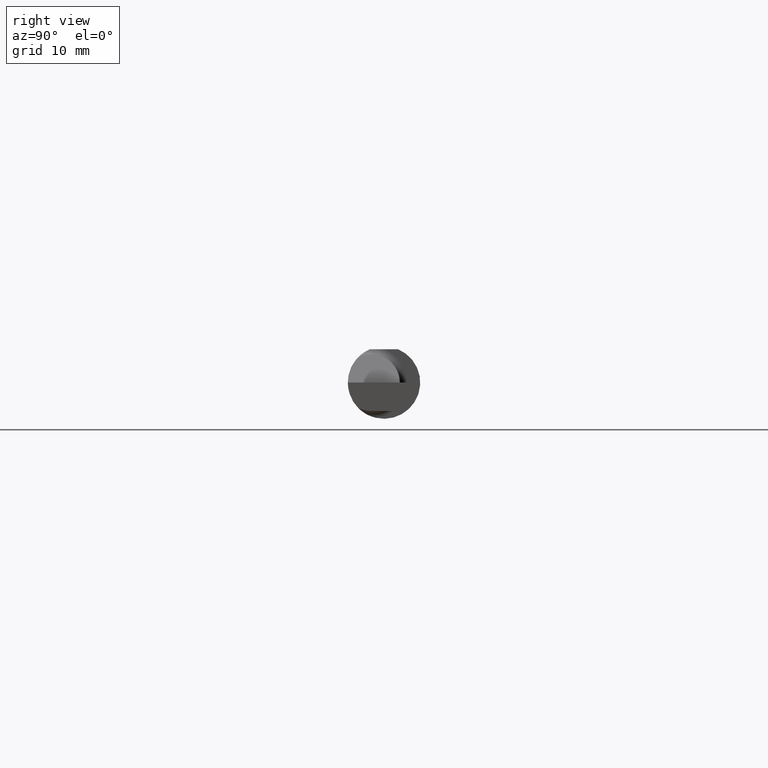
[diagram: clean part render]
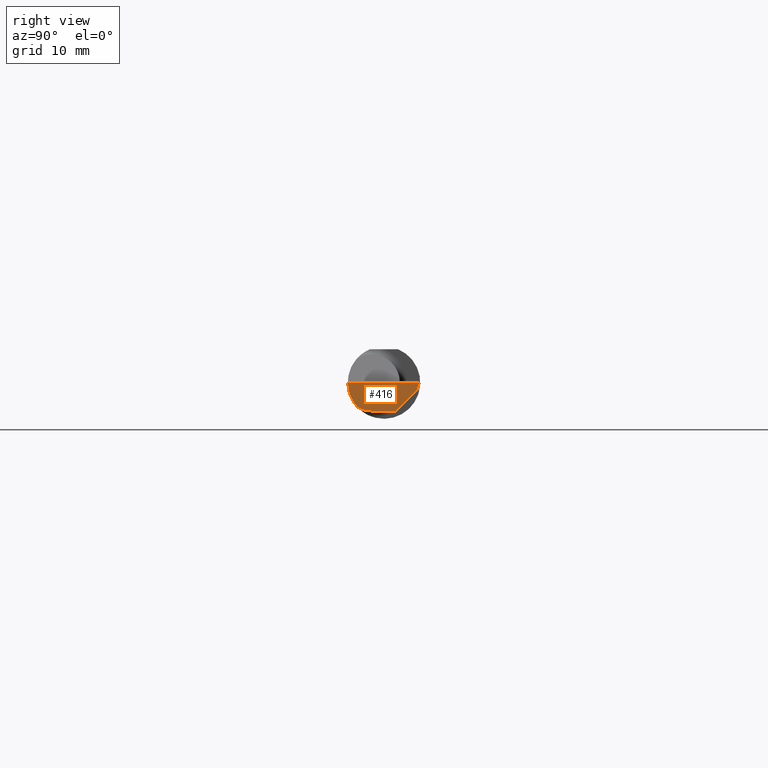
[diagram: same view with one face highlighted and labeled with its STEP entity id]
A machine part, right view. The second image highlights one B-rep face of the part: STEP entity #416.
In plain terms, the highlighted planar face has unit normal (-0.9995, 0.0174, 0.0262).
Its self-contained STEP definition (entity closure, byte-faithful):
#9 = EDGE_CURVE ( 'NONE', #394, #778, #321, .T. ) ;
#14 = VERTEX_POINT ( 'NONE', #137 ) ;
#23 = FACE_OUTER_BOUND ( 'NONE', #359, .T. ) ;
#56 = VERTEX_POINT ( 'NONE', #524 ) ;
#70 = EDGE_CURVE ( 'NONE', #778, #462, #717, .T. ) ;
#75 = PLANE ( 'NONE',  #561 ) ;
#78 = CARTESIAN_POINT ( 'NONE',  ( 2.499907402661638134, 0.1211597610527450908, -0.002875862722115925512 ) ) ;
#93 = EDGE_CURVE ( 'NONE', #430, #394, #112, .T. ) ;
#97 = CARTESIAN_POINT ( 'NONE',  ( 2.493072779947982820, -0.1248043149033065263, -0.09996577117162364079 ) ) ;
#112 = LINE ( 'NONE', #358, #388 ) ;
#117 = ORIENTED_EDGE ( 'NONE', *, *, #70, .F. ) ;
#126 = CARTESIAN_POINT ( 'NONE',  ( 2.494253479596433731, -0.06008937020638527304, -0.09800000000000000377 ) ) ;
#137 = CARTESIAN_POINT ( 'NONE',  ( 2.494033449660866708, -0.09015216647662482874, -0.08637192471845768493 ) ) ;
#140 =( BOUNDED_CURVE ( )  B_SPLINE_CURVE ( 3, ( #159, #155, #295, #348 ),
 .UNSPECIFIED., .F., .T. ) 
 B_SPLINE_CURVE_WITH_KNOTS ( ( 4, 4 ),
 ( 0.2190942387645742062, 0.9826237902197102470 ),
 .UNSPECIFIED. ) 
 CURVE ( )  GEOMETRIC_REPRESENTATION_ITEM ( )  RATIONAL_B_SPLINE_CURVE ( ( 1.000000000000000000, 0.9520057322288819623, 0.9520057322288819623, 1.000000000000000000 ) ) 
 REPRESENTATION_ITEM ( '' )  );
#149 = CARTESIAN_POINT ( 'NONE',  ( 2.494536841675280225, -0.04385000000000003478, -0.09799999999999998990 ) ) ;
#155 = CARTESIAN_POINT ( 'NONE',  ( 2.494256244271086054, -0.1126860773865890342, -0.06285177167860771241 ) ) ;
#159 = CARTESIAN_POINT ( 'NONE',  ( 2.494033449660866708, -0.09015216647662482874, -0.08637192471845768493 ) ) ;
#164 = EDGE_CURVE ( 'NONE', #14, #56, #140, .T. ) ;
#210 = CARTESIAN_POINT ( 'NONE',  ( 2.500000000000000000, 0.1221500000000000224, 1.614031285319217924E-16 ) ) ;
#215 = DIRECTION ( 'NONE',  ( -0.03042981077198511977, -0.3254173858243485373, -0.9450807116958996890 ) ) ;
#244 = CARTESIAN_POINT ( 'NONE',  ( 2.496652745773395576, 0.07741163850316090667, -0.09800000000000001765 ) ) ;
#250 = CARTESIAN_POINT ( 'NONE',  ( 2.494033449660866708, -0.09015216647662482874, -0.08637192471845768493 ) ) ;
#272 = DIRECTION ( 'NONE',  ( -0.9995051766793263681, 0.01744044634006990460, 0.02617694830739123249 ) ) ;
#277 = EDGE_CURVE ( 'NONE', #14, #353, #789, .T. ) ;
#279 = DIRECTION ( 'NONE',  ( 0.01744642479411244104, 0.9998477995484630343, -2.135106780035405654E-18 ) ) ;
#295 = CARTESIAN_POINT ( 'NONE',  ( 2.494835769263151537, -0.1248351010429638169, -0.03262966116142150541 ) ) ;
#321 = LINE ( 'NONE', #78, #423 ) ;
#328 = EDGE_CURVE ( 'NONE', #462, #353, #541, .T. ) ;
#348 = CARTESIAN_POINT ( 'NONE',  ( 2.495688583004118666, -0.1248499869621840785, -5.705736120965713455E-05 ) ) ;
#353 = VERTEX_POINT ( 'NONE', #149 ) ;
#358 = CARTESIAN_POINT ( 'NONE',  ( 2.494380489674781209, -0.1999019447116721915, 6.881915332554697616E-19 ) ) ;
#359 = EDGE_LOOP ( 'NONE', ( #490, #747, #117, #703, #787, #534, #379 ) ) ;
#364 = VECTOR ( 'NONE', #422, 39.37007874015747433 ) ;
#379 = ORIENTED_EDGE ( 'NONE', *, *, #164, .F. ) ;
#381 = CARTESIAN_POINT ( 'NONE',  ( 2.497382703856815933, 0.1221956850741156148, -0.09996573249755576207 ) ) ;
#388 = VECTOR ( 'NONE', #279, 39.37007874015747433 ) ;
#394 = VERTEX_POINT ( 'NONE', #210 ) ;
#402 = DIRECTION ( 'NONE',  ( 0.02617296143184117893, -0.0004568507411563389568, 0.9996573249755575929 ) ) ;
#409 = CARTESIAN_POINT ( 'NONE',  ( 2.495997960279815242, 0.03988613728104774270, -0.09799999999999996214 ) ) ;
#416 = ADVANCED_FACE ( 'NONE', ( #23 ), #75, .F. ) ;
#422 = DIRECTION ( 'NONE',  ( -0.01744642479411243410, -0.9998477995484630343, 2.816882764651548725E-16 ) ) ;
#423 = VECTOR ( 'NONE', #215, 39.37007874015748143 ) ;
#430 = VERTEX_POINT ( 'NONE', #444 ) ;
#444 = CARTESIAN_POINT ( 'NONE',  ( 2.495690077103728921, -0.1248499999950964945, 8.800986592364463999E-18 ) ) ;
#457 = CARTESIAN_POINT ( 'NONE',  ( 2.499132853025170853, 0.1117231085775383936, -0.02616302870350959223 ) ) ;
#462 = VERTEX_POINT ( 'NONE', #409 ) ;
#490 = ORIENTED_EDGE ( 'NONE', *, *, #277, .T. ) ;
#499 = EDGE_CURVE ( 'NONE', #56, #430, #574, .T. ) ;
#514 = CARTESIAN_POINT ( 'NONE',  ( 2.499227245409318066, 0.1138861372810480027, -0.02399999999999999356 ) ) ;
#524 = CARTESIAN_POINT ( 'NONE',  ( 2.495688583004118666, -0.1248499869621840785, -5.705736120965713455E-05 ) ) ;
#534 = ORIENTED_EDGE ( 'NONE', *, *, #499, .F. ) ;
#541 = LINE ( 'NONE', #244, #364 ) ;
#561 = AXIS2_PLACEMENT_3D ( 'NONE', #381, #272, #693 ) ;
#574 = LINE ( 'NONE', #97, #779 ) ;
#621 = VECTOR ( 'NONE', #656, 39.37007874015748854 ) ;
#656 = DIRECTION ( 'NONE',  ( -0.03084274406794365597, -0.7067703747110382073, -0.7067703747110356538 ) ) ;
#666 = CARTESIAN_POINT ( 'NONE',  ( 2.494536841675280225, -0.04385000000000003478, -0.09799999999999998990 ) ) ;
#673 = CARTESIAN_POINT ( 'NONE',  ( 2.494082244196983211, -0.07583965973232817404, -0.09404455760388209795 ) ) ;
#693 = DIRECTION ( 'NONE',  ( 0.02618093032612054880, 0.000000000000000000, 0.9996572206948033390 ) ) ;
#703 = ORIENTED_EDGE ( 'NONE', *, *, #9, .F. ) ;
#717 = LINE ( 'NONE', #457, #621 ) ;
#747 = ORIENTED_EDGE ( 'NONE', *, *, #328, .F. ) ;
#778 = VERTEX_POINT ( 'NONE', #514 ) ;
#779 = VECTOR ( 'NONE', #402, 39.37007874015748854 ) ;
#787 = ORIENTED_EDGE ( 'NONE', *, *, #93, .F. ) ;
#789 =( BOUNDED_CURVE ( )  B_SPLINE_CURVE ( 3, ( #250, #673, #126, #666 ),
 .UNSPECIFIED., .F., .F. ) 
 B_SPLINE_CURVE_WITH_KNOTS ( ( 4, 4 ),
 ( 0.09562308769838283318, 0.5877155292608426951 ),
 .UNSPECIFIED. ) 
 CURVE ( )  GEOMETRIC_REPRESENTATION_ITEM ( )  RATIONAL_B_SPLINE_CURVE ( ( 1.000000000000000000, 0.9799220177372778284, 0.9799220177372778284, 1.000000000000000000 ) ) 
 REPRESENTATION_ITEM ( '' )  );